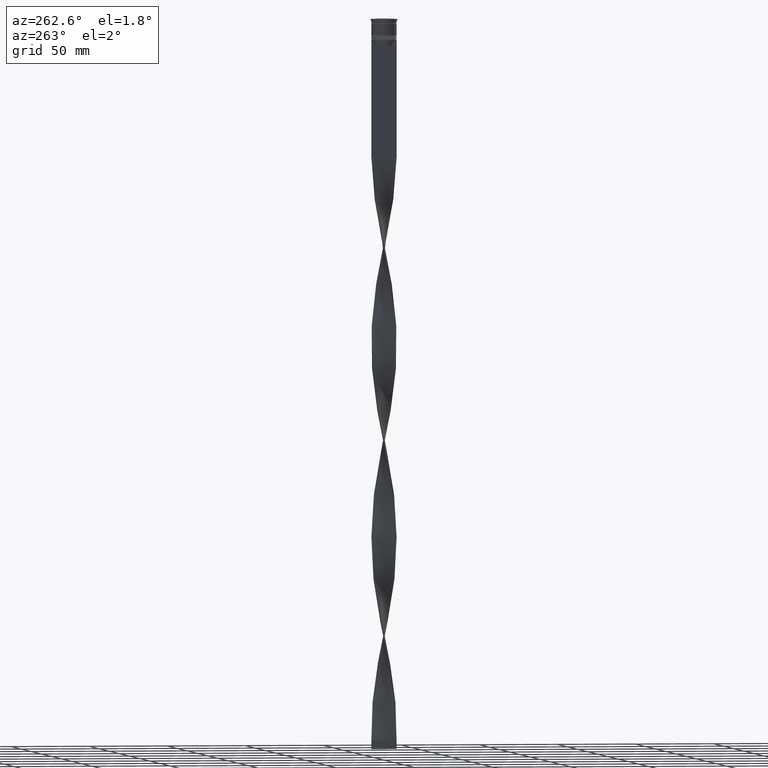
[diagram: clean part render]
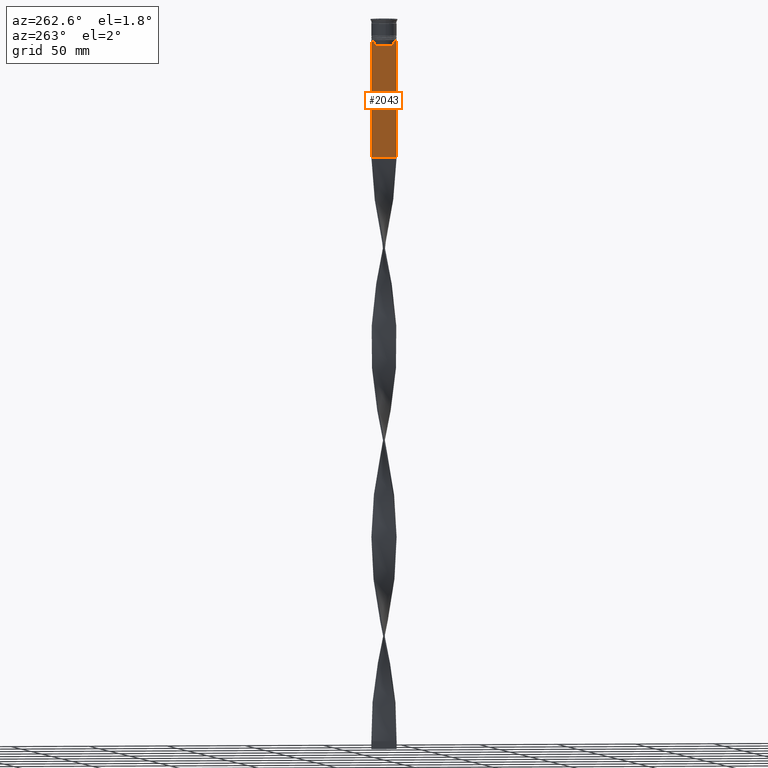
[diagram: same view with one face highlighted and labeled with its STEP entity id]
A machine part, auxiliary view. The second image highlights one B-rep face of the part: STEP entity #2043.
In plain terms, the highlighted planar face has unit normal (-1, 0, 0).
Its self-contained STEP definition (entity closure, byte-faithful):
#2 = CARTESIAN_POINT ( 'NONE',  ( -0.4999999999999998890, 6.380438856379708312, 0.000000000000000000 ) ) ;
#51 = ORIENTED_EDGE ( 'NONE', *, *, #1494, .F. ) ;
#119 = EDGE_CURVE ( 'NONE', #2952, #4047, #3796, .T. ) ;
#143 = B_SPLINE_CURVE_WITH_KNOTS ( 'NONE', 3,
 ( #4273, #3286, #1620, #296 ),
 .UNSPECIFIED., .F., .F.,
 ( 4, 4 ),
 ( 0.01172465562756038263, 0.01243276816391822651 ),
 .UNSPECIFIED. ) ;
#211 = CARTESIAN_POINT ( 'NONE',  ( -0.4999999999999998890, -8.000000000000003553, -14.00000000000000178 ) ) ;
#254 = VECTOR ( 'NONE', #2315, 1000.000000000000000 ) ;
#276 = DIRECTION ( 'NONE',  ( 0.000000000000000000, -1.000000000000000000, 0.000000000000000000 ) ) ;
#282 = EDGE_LOOP ( 'NONE', ( #1905, #1625, #2039, #3792, #4120, #3387, #2083, #3847, #3830, #1499, #3990, #51 ) ) ;
#292 = VERTEX_POINT ( 'NONE', #4198 ) ;
#296 = CARTESIAN_POINT ( 'NONE',  ( -0.4999999999999998890, 6.380438856379708312, -14.50000000000000000 ) ) ;
#382 = EDGE_CURVE ( 'NONE', #1700, #528, #1246, .T. ) ;
#450 = CARTESIAN_POINT ( 'NONE',  ( -0.4999999999999998890, 7.999999999999996447, 2.031219541881394530 ) ) ;
#510 = DIRECTION ( 'NONE',  ( -1.000000000000000000, 0.000000000000000000, 0.000000000000000000 ) ) ;
#528 = VERTEX_POINT ( 'NONE', #3276 ) ;
#615 = LINE ( 'NONE', #2, #254 ) ;
#619 = EDGE_CURVE ( 'NONE', #1033, #1487, #2621, .T. ) ;
#638 = CARTESIAN_POINT ( 'NONE',  ( -0.4999999999999998890, 6.380438856379708312, -17.00000000000000000 ) ) ;
#794 = CARTESIAN_POINT ( 'NONE',  ( -0.4999999999999998890, 6.399999999999999467, -17.00000000000000000 ) ) ;
#816 = LINE ( 'NONE', #3450, #3879 ) ;
#997 = EDGE_CURVE ( 'NONE', #2707, #1700, #816, .T. ) ;
#1033 = VERTEX_POINT ( 'NONE', #2166 ) ;
#1090 = LINE ( 'NONE', #450, #2694 ) ;
#1093 = VECTOR ( 'NONE', #1143, 1000.000000000000000 ) ;
#1143 = DIRECTION ( 'NONE',  ( 0.000000000000000000, 1.000000000000000000, 0.000000000000000000 ) ) ;
#1152 = LINE ( 'NONE', #211, #3465 ) ;
#1246 = LINE ( 'NONE', #1310, #2607 ) ;
#1310 = CARTESIAN_POINT ( 'NONE',  ( -0.4999999999999998890, -8.000000000000003553, 2.031219541881394530 ) ) ;
#1392 = CARTESIAN_POINT ( 'NONE',  ( -0.4999999999999998890, -6.380438856379708312, -17.00000000000000000 ) ) ;
#1401 = CARTESIAN_POINT ( 'NONE',  ( -0.4999999999999998890, 6.380438856379708312, -14.50000000000000000 ) ) ;
#1487 = VERTEX_POINT ( 'NONE', #3584 ) ;
#1494 = EDGE_CURVE ( 'NONE', #3127, #2952, #615, .T. ) ;
#1499 = ORIENTED_EDGE ( 'NONE', *, *, #3840, .F. ) ;
#1555 = EDGE_CURVE ( 'NONE', #528, #3330, #2854, .T. ) ;
#1616 = CARTESIAN_POINT ( 'NONE',  ( -0.4999999999999998890, -6.881860213634098500, -14.00000000000000178 ) ) ;
#1620 = CARTESIAN_POINT ( 'NONE',  ( -0.4999999999999998890, 6.547597841304911626, -14.33335192459222718 ) ) ;
#1625 = ORIENTED_EDGE ( 'NONE', *, *, #4154, .F. ) ;
#1700 = VERTEX_POINT ( 'NONE', #3601 ) ;
#1704 = VERTEX_POINT ( 'NONE', #2590 ) ;
#1905 = ORIENTED_EDGE ( 'NONE', *, *, #2070, .F. ) ;
#1954 = FACE_OUTER_BOUND ( 'NONE', #282, .T. ) ;
#2011 = EDGE_CURVE ( 'NONE', #1487, #2707, #2280, .T. ) ;
#2039 = ORIENTED_EDGE ( 'NONE', *, *, #3352, .F. ) ;
#2043 = ADVANCED_FACE ( 'NONE', ( #1954 ), #4295, .T. ) ;
#2070 = EDGE_CURVE ( 'NONE', #292, #3127, #143, .T. ) ;
#2083 = ORIENTED_EDGE ( 'NONE', *, *, #997, .F. ) ;
#2136 = DIRECTION ( 'NONE',  ( 0.000000000000000000, -1.000000000000000000, 0.000000000000000000 ) ) ;
#2166 = CARTESIAN_POINT ( 'NONE',  ( -0.4999999999999998890, -6.380438856379708312, -14.50000000000000000 ) ) ;
#2256 = VECTOR ( 'NONE', #4028, 1000.000000000000000 ) ;
#2280 = LINE ( 'NONE', #3620, #3325 ) ;
#2296 = CARTESIAN_POINT ( 'NONE',  ( -0.4999999999999998890, -6.547597841511246131, -14.33335192438652328 ) ) ;
#2315 = DIRECTION ( 'NONE',  ( 0.000000000000000000, 0.000000000000000000, -1.000000000000000000 ) ) ;
#2492 = DIRECTION ( 'NONE',  ( 0.000000000000000000, -1.000000000000000000, 0.000000000000000000 ) ) ;
#2520 = CARTESIAN_POINT ( 'NONE',  ( -0.4999999999999998890, -8.000000000000003553, 2.031219541881394530 ) ) ;
#2562 = LINE ( 'NONE', #3594, #4107 ) ;
#2590 = CARTESIAN_POINT ( 'NONE',  ( -0.4999999999999998890, 7.884161337770806632, -14.00000000000000178 ) ) ;
#2607 = VECTOR ( 'NONE', #3631, 1000.000000000000000 ) ;
#2621 = B_SPLINE_CURVE_WITH_KNOTS ( 'NONE', 3,
 ( #4006, #2296, #3346, #1616 ),
 .UNSPECIFIED., .F., .F.,
 ( 4, 4 ),
 ( 0.02996184199614749730, 0.03067452609193703841 ),
 .UNSPECIFIED. ) ;
#2634 = CARTESIAN_POINT ( 'NONE',  ( -0.4999999999999998890, 7.999999999999996447, -88.00000000000000000 ) ) ;
#2674 = LINE ( 'NONE', #2698, #3690 ) ;
#2694 = VECTOR ( 'NONE', #2803, 1000.000000000000000 ) ;
#2698 = CARTESIAN_POINT ( 'NONE',  ( -0.4999999999999998890, -6.380438856379708312, 0.000000000000000000 ) ) ;
#2707 = VERTEX_POINT ( 'NONE', #3110 ) ;
#2803 = DIRECTION ( 'NONE',  ( 0.000000000000000000, 0.000000000000000000, -1.000000000000000000 ) ) ;
#2854 = LINE ( 'NONE', #3536, #1093 ) ;
#2897 = AXIS2_PLACEMENT_3D ( 'NONE', #2520, #510, #3266 ) ;
#2952 = VERTEX_POINT ( 'NONE', #638 ) ;
#3110 = CARTESIAN_POINT ( 'NONE',  ( -0.4999999999999998890, -7.884161337770806632, -14.00000000000000178 ) ) ;
#3127 = VERTEX_POINT ( 'NONE', #1401 ) ;
#3222 = CARTESIAN_POINT ( 'NONE',  ( -0.4999999999999998890, 7.999999999999996447, -14.00000000000000178 ) ) ;
#3266 = DIRECTION ( 'NONE',  ( 0.000000000000000000, 0.000000000000000000, 1.000000000000000000 ) ) ;
#3276 = CARTESIAN_POINT ( 'NONE',  ( -0.4999999999999998890, -8.000000000000003553, -88.00000000000000000 ) ) ;
#3282 = VERTEX_POINT ( 'NONE', #3222 ) ;
#3286 = CARTESIAN_POINT ( 'NONE',  ( -0.4999999999999998890, 6.714736947114692711, -14.16668390704818847 ) ) ;
#3325 = VECTOR ( 'NONE', #276, 1000.000000000000000 ) ;
#3330 = VERTEX_POINT ( 'NONE', #2634 ) ;
#3346 = CARTESIAN_POINT ( 'NONE',  ( -0.4999999999999998890, -6.714736947305992132, -14.16668390685738999 ) ) ;
#3352 = EDGE_CURVE ( 'NONE', #3282, #1704, #2562, .T. ) ;
#3387 = ORIENTED_EDGE ( 'NONE', *, *, #382, .F. ) ;
#3450 = CARTESIAN_POINT ( 'NONE',  ( -0.4999999999999998890, -8.000000000000003553, -14.00000000000000178 ) ) ;
#3465 = VECTOR ( 'NONE', #2136, 1000.000000000000000 ) ;
#3536 = CARTESIAN_POINT ( 'NONE',  ( -0.4999999999999998890, -8.000000000000003553, -88.00000000000000000 ) ) ;
#3571 = DIRECTION ( 'NONE',  ( 0.000000000000000000, -1.000000000000000000, 0.000000000000000000 ) ) ;
#3584 = CARTESIAN_POINT ( 'NONE',  ( -0.4999999999999998890, -6.881860213634098500, -14.00000000000000178 ) ) ;
#3594 = CARTESIAN_POINT ( 'NONE',  ( -0.4999999999999998890, -8.000000000000003553, -14.00000000000000178 ) ) ;
#3601 = CARTESIAN_POINT ( 'NONE',  ( -0.4999999999999998890, -8.000000000000003553, -14.00000000000000178 ) ) ;
#3620 = CARTESIAN_POINT ( 'NONE',  ( -0.4999999999999998890, -8.000000000000003553, -14.00000000000000178 ) ) ;
#3631 = DIRECTION ( 'NONE',  ( 0.000000000000000000, 0.000000000000000000, -1.000000000000000000 ) ) ;
#3690 = VECTOR ( 'NONE', #4014, 1000.000000000000000 ) ;
#3792 = ORIENTED_EDGE ( 'NONE', *, *, #4077, .T. ) ;
#3796 = LINE ( 'NONE', #794, #2256 ) ;
#3830 = ORIENTED_EDGE ( 'NONE', *, *, #619, .F. ) ;
#3840 = EDGE_CURVE ( 'NONE', #4047, #1033, #2674, .T. ) ;
#3847 = ORIENTED_EDGE ( 'NONE', *, *, #2011, .F. ) ;
#3879 = VECTOR ( 'NONE', #2492, 1000.000000000000000 ) ;
#3990 = ORIENTED_EDGE ( 'NONE', *, *, #119, .F. ) ;
#4006 = CARTESIAN_POINT ( 'NONE',  ( -0.4999999999999998890, -6.380438856379708312, -14.50000000000000000 ) ) ;
#4014 = DIRECTION ( 'NONE',  ( -0.000000000000000000, -0.000000000000000000, 1.000000000000000000 ) ) ;
#4028 = DIRECTION ( 'NONE',  ( 0.000000000000000000, -1.000000000000000000, 0.000000000000000000 ) ) ;
#4047 = VERTEX_POINT ( 'NONE', #1392 ) ;
#4077 = EDGE_CURVE ( 'NONE', #3282, #3330, #1090, .T. ) ;
#4107 = VECTOR ( 'NONE', #3571, 1000.000000000000000 ) ;
#4120 = ORIENTED_EDGE ( 'NONE', *, *, #1555, .F. ) ;
#4154 = EDGE_CURVE ( 'NONE', #1704, #292, #1152, .T. ) ;
#4198 = CARTESIAN_POINT ( 'NONE',  ( -0.4999999999999998890, 6.881860213634098500, -14.00000000000000178 ) ) ;
#4273 = CARTESIAN_POINT ( 'NONE',  ( -0.4999999999999998890, 6.881860213634098500, -14.00000000000000178 ) ) ;
#4295 = PLANE ( 'NONE',  #2897 ) ;